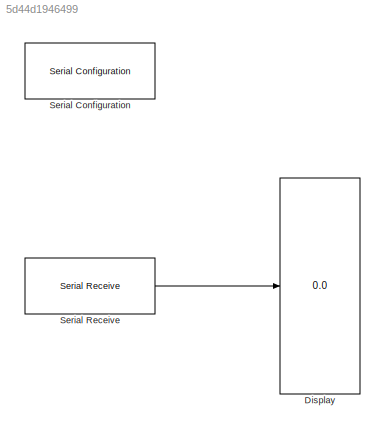
MODEL slx_5d44d1946499
KIND model
CONFIG AbsTol = auto
CONFIG EnableMultiTasking = off
CONFIG FixedStep = auto
CONFIG MaxStep = auto
CONFIG MinStep = auto
CONFIG RelTol = 1e-3
CONFIG SampleTimeConstraint = Unconstrained
CONFIG Solver = VariableStepAuto
CONFIG SolverName = VariableStepAuto
CONFIG StartTime = 0.0
CONFIG StopTime = 10.0
BLOCK [Display] Display
  Decimation = 1
  Format = hex (Stored Integer)
  Ports = [1]
BLOCK [Reference] Serial Configuration  REF=instrumentlib/Serial Configuration
  Ports = []
  Priority = -200000
  SourceBlock = instrumentlib/Serial Configuration
  SourceProductBaseCode = IC
  SourceProductName = Instrument Control Toolbox
  SourceType = Serial Configuration
BLOCK [Reference] Serial Receive  REF=instrumentlib/Serial Receive
  Ports = [0, 1]
  SourceBlock = instrumentlib/Serial Receive
  SourceProductBaseCode = IC
  SourceProductName = Instrument Control Toolbox
  SourceType = Serial Receive
LINE Serial Receive:1 -> Display:1
